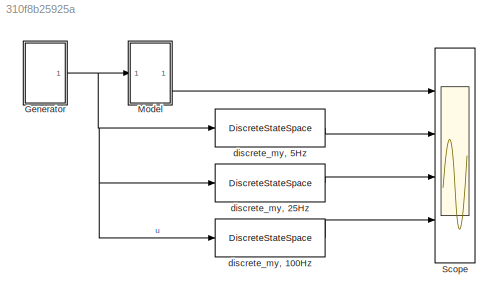
MODEL slx_310f8b25925a
KIND model
CONFIG AbsTol = auto
CONFIG EnableMultiTasking = off
CONFIG FixedStep = auto
CONFIG MaxStep = auto
CONFIG MinStep = auto
CONFIG RelTol = 1e-3
CONFIG SampleTimeConstraint = Unconstrained
CONFIG SolverName = VariableStepAuto
CONFIG StartTime = 0.0
CONFIG StopTime = 10.0
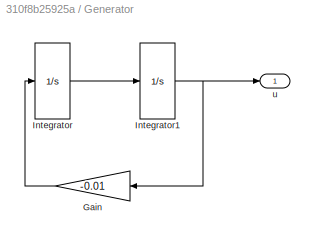
BLOCK [SubSystem] Generator
  Ports = [0, 1]
  RequestExecContextInheritance = off
BLOCK [Gain] Generator/Gain
  Gain = -0.01
  NameLocation = top
BLOCK [Integrator] Generator/Integrator
  InitialCondition = -0.3*sin(1)
  Ports = [1, 1]
BLOCK [Integrator] Generator/Integrator1
  InitialCondition = 3*cos(1)
  Ports = [1, 1]
BLOCK [Outport] Generator/u
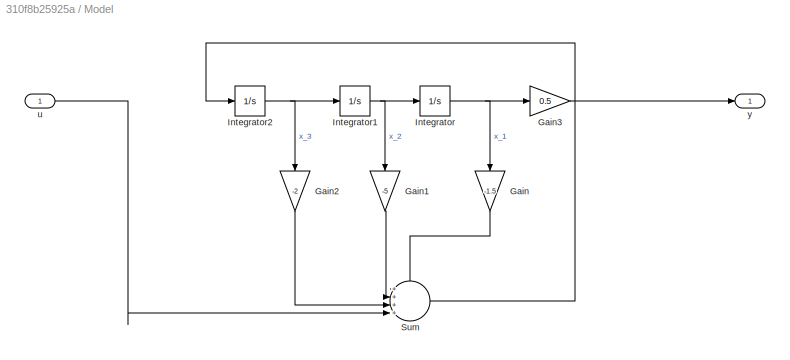
BLOCK [SubSystem] Model
  Ports = [1, 1]
  RequestExecContextInheritance = off
BLOCK [Gain] Model/Gain
  Gain = -1.5
  NameLocation = left
BLOCK [Gain] Model/Gain1
  Gain = -5
  NameLocation = left
BLOCK [Gain] Model/Gain2
  Gain = -2
  NameLocation = left
BLOCK [Gain] Model/Gain3
  Gain = 0.5
BLOCK [Integrator] Model/Integrator
  Ports = [1, 1]
BLOCK [Integrator] Model/Integrator1
  Ports = [1, 1]
BLOCK [Integrator] Model/Integrator2
  Ports = [1, 1]
BLOCK [Sum] Model/Sum
  Inputs = ++++|
  Ports = [4, 1]
BLOCK [Inport] Model/u
BLOCK [Outport] Model/y
BLOCK [Scope] Scope
  Floating = off
  NumInputPorts = 4
  Ports = [4]
  ScopeSpecificationString = Simulink.scopes.TimeScopeBlockCfg('CurrentConfiguration', extmgr.ConfigurationSet(extmgr.Configuration('Core','General UI',true,'FigureColor',[1 1 1]),extmgr.Configuration('Core','Source UI',true),extmgr.Configuration('Sources','WiredSimulink',true),extmgr.Configuration('Visuals','Time Domain',true,'SerializedDisplays',{struct('MinYLimReal','-0.17555','MaxYLimReal','0.308','YLabelReal','','MinYLim...<+1587ch>
BLOCK [DiscreteStateSpace] discrete_my, 100Hz
  A = Desc100Hz.Ad
  B = Desc100Hz.Bd
  C = Desc100Hz.Cd
  D = Desc100Hz.Dd
  SampleTime = 1/100
BLOCK [DiscreteStateSpace] discrete_my, 25Hz
  A = Desc25Hz.Ad
  B = Desc25Hz.Bd
  C = Desc25Hz.Cd
  D = Desc25Hz.Dd
  SampleTime = 1/25
BLOCK [DiscreteStateSpace] discrete_my, 5Hz 
  A = Desc5Hz.Ad
  B = Desc5Hz.Bd
  C = Desc5Hz.Cd
  D = Desc5Hz.Dd
  SampleTime = 1/5
LINE Generator/Gain:1 -> Generator/Integrator:1
NET Generator/Integrator1:1 -> Generator/Gain:1, Generator/u:1
LINE Generator/Integrator:1 -> Generator/Integrator1:1
NET Generator:1 -> Model:1, discrete_my, 100Hz:1, discrete_my, 25Hz:1, discrete_my, 5Hz :1
LINE Model/Gain1:1 -> Model/Sum:2
LINE Model/Gain2:1 -> Model/Sum:3
LINE Model/Gain3:1 -> Model/y:1
LINE Model/Gain:1 -> Model/Sum:1
NET Model/Integrator1:1 -> Model/Gain1:1, Model/Integrator:1
NET Model/Integrator2:1 -> Model/Gain2:1, Model/Integrator1:1
NET Model/Integrator:1 -> Model/Gain3:1, Model/Gain:1
LINE Model/Sum:1 -> Model/Integrator2:1
LINE Model/u:1 -> Model/Sum:4
LINE Model:1 -> Scope:1
LINE discrete_my, 100Hz:1 -> Scope:4
LINE discrete_my, 25Hz:1 -> Scope:3
LINE discrete_my, 5Hz :1 -> Scope:2
note: NET lines group one-source signal fan-out (src -> all destinations, sorted); 1:1 wires keep LINE
